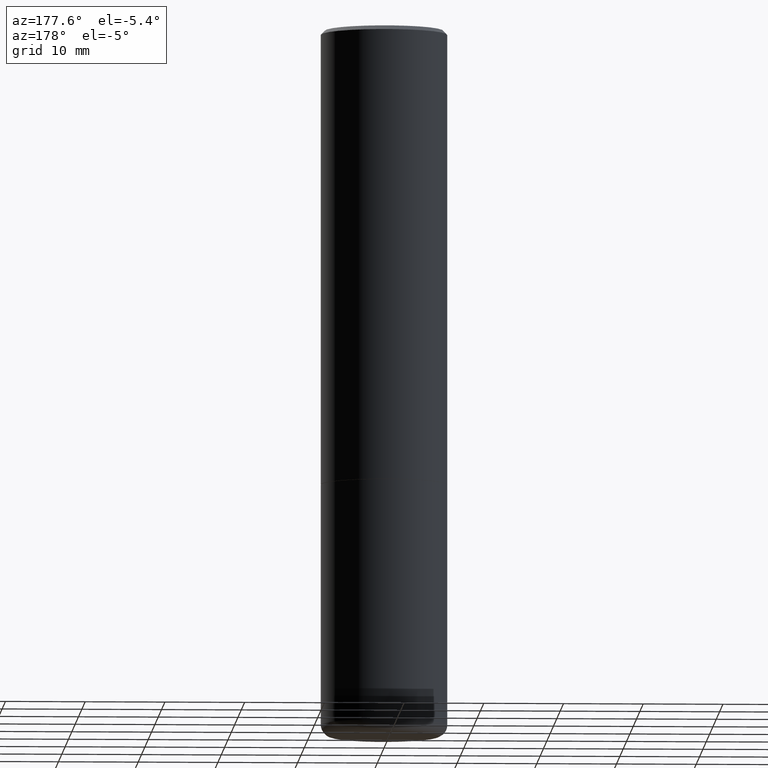
[diagram: clean part render]
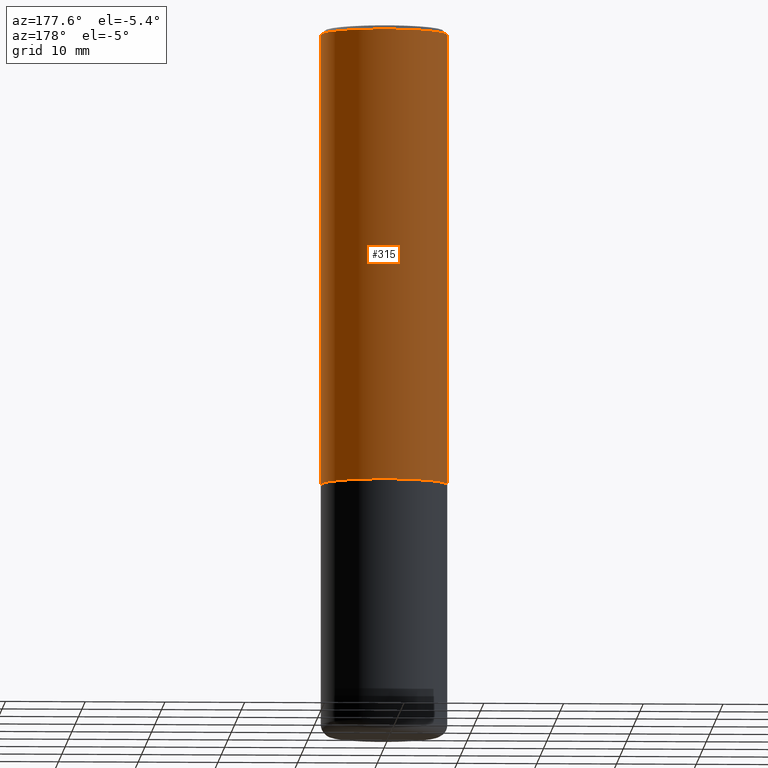
[diagram: same view with one face highlighted and labeled with its STEP entity id]
A machine part, auxiliary view. The second image highlights one B-rep face of the part: STEP entity #315.
In plain terms, the highlighted cylindrical surface (partial cylindrical patch) has radius 7.9375 mm, axis along (-0, 0, 1).
Its self-contained STEP definition (entity closure, byte-faithful):
#14 = CARTESIAN_POINT ( 'NONE',  ( 4.890937612370289799E-31, -6.982962677686315028E-17, -0.02000000000000006981 ) ) ;
#22 = ORIENTED_EDGE ( 'NONE', *, *, #186, .F. ) ;
#24 = EDGE_CURVE ( 'NONE', #394, #225, #309, .T. ) ;
#30 = CIRCLE ( 'NONE', #108, 0.3125000000000002220 ) ;
#44 = DIRECTION ( 'NONE',  ( -2.445468806185136597E-29, 3.491481338843145583E-15, 1.000000000000000000 ) ) ;
#48 = VECTOR ( 'NONE', #282, 39.37007874015748143 ) ;
#62 = CARTESIAN_POINT ( 'NONE',  ( -0.3124999999999998890, 2.112346210000094260E-15, -0.02000000000000006981 ) ) ;
#100 = AXIS2_PLACEMENT_3D ( 'NONE', #270, #44, #177 ) ;
#106 = EDGE_CURVE ( 'NONE', #294, #225, #198, .T. ) ;
#108 = AXIS2_PLACEMENT_3D ( 'NONE', #306, #247, #256 ) ;
#116 = EDGE_CURVE ( 'NONE', #320, #294, #30, .T. ) ;
#118 = FACE_OUTER_BOUND ( 'NONE', #353, .T. ) ;
#128 = ORIENTED_EDGE ( 'NONE', *, *, #106, .T. ) ;
#141 = CYLINDRICAL_SURFACE ( 'NONE', #100, 0.3125000000000000000 ) ;
#142 = CARTESIAN_POINT ( 'NONE',  ( 0.3125000000000002220, -1.003451736783519379E-14, -2.248999999999999666 ) ) ;
#155 = ORIENTED_EDGE ( 'NONE', *, *, #24, .F. ) ;
#175 = DIRECTION ( 'NONE',  ( -2.445468806185136877E-29, 3.491481338843145188E-15, 1.000000000000000000 ) ) ;
#177 = DIRECTION ( 'NONE',  ( 1.000000000000000000, -6.982962677686266711E-15, 4.876176775795936353E-29 ) ) ;
#184 = LINE ( 'NONE', #416, #48 ) ;
#186 = EDGE_CURVE ( 'NONE', #320, #394, #184, .T. ) ;
#198 = LINE ( 'NONE', #343, #362 ) ;
#210 = ORIENTED_EDGE ( 'NONE', *, *, #116, .T. ) ;
#225 = VERTEX_POINT ( 'NONE', #62 ) ;
#238 = CARTESIAN_POINT ( 'NONE',  ( -0.3125000000000002220, -1.740639529667230767E-15, -2.248999999999999666 ) ) ;
#247 = DIRECTION ( 'NONE',  ( -2.445468806185136597E-29, 3.491481338843145583E-15, 1.000000000000000000 ) ) ;
#256 = DIRECTION ( 'NONE',  ( 1.000000000000000000, -6.982962677686266711E-15, 0.000000000000000000 ) ) ;
#270 = CARTESIAN_POINT ( 'NONE',  ( 0.000000000000000000, 0.000000000000000000, 0.000000000000000000 ) ) ;
#271 = CARTESIAN_POINT ( 'NONE',  ( 0.3124999999999998890, -2.213735251080466123E-15, -0.02000000000000006981 ) ) ;
#275 = DIRECTION ( 'NONE',  ( -2.445468806185136597E-29, 3.491481338843145583E-15, 1.000000000000000000 ) ) ;
#282 = DIRECTION ( 'NONE',  ( -2.445468806185136877E-29, 3.491481338843145188E-15, 1.000000000000000000 ) ) ;
#294 = VERTEX_POINT ( 'NONE', #238 ) ;
#306 = CARTESIAN_POINT ( 'NONE',  ( 5.499859345110371740E-29, -7.852341531058233864E-15, -2.248999999999999666 ) ) ;
#309 = CIRCLE ( 'NONE', #385, 0.3124999999999998890 ) ;
#315 = ADVANCED_FACE ( 'NONE', ( #118 ), #141, .T. ) ;
#320 = VERTEX_POINT ( 'NONE', #142 ) ;
#343 = CARTESIAN_POINT ( 'NONE',  ( -0.3125000000000000000, 2.220446049250313081E-15, -1.537167215704658232E-29 ) ) ;
#345 = DIRECTION ( 'NONE',  ( 1.000000000000000000, -6.982962677686266711E-15, 0.000000000000000000 ) ) ;
#353 = EDGE_LOOP ( 'NONE', ( #210, #128, #155, #22 ) ) ;
#362 = VECTOR ( 'NONE', #175, 39.37007874015748143 ) ;
#385 = AXIS2_PLACEMENT_3D ( 'NONE', #14, #275, #345 ) ;
#394 = VERTEX_POINT ( 'NONE', #271 ) ;
#416 = CARTESIAN_POINT ( 'NONE',  ( 0.3125000000000000000, -2.182175836776958347E-15, 1.523805242436230075E-29 ) ) ;